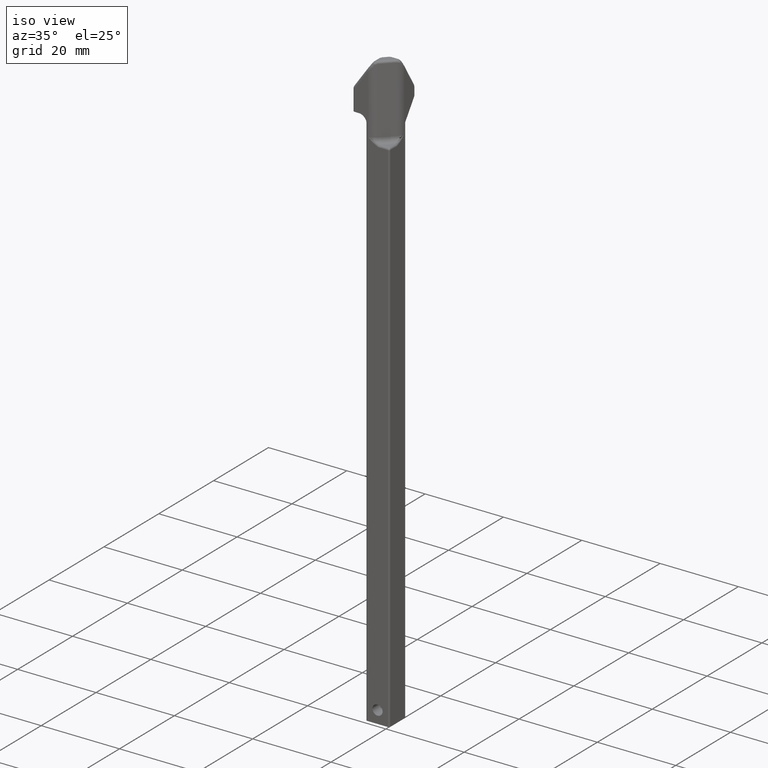
[diagram: clean part render]
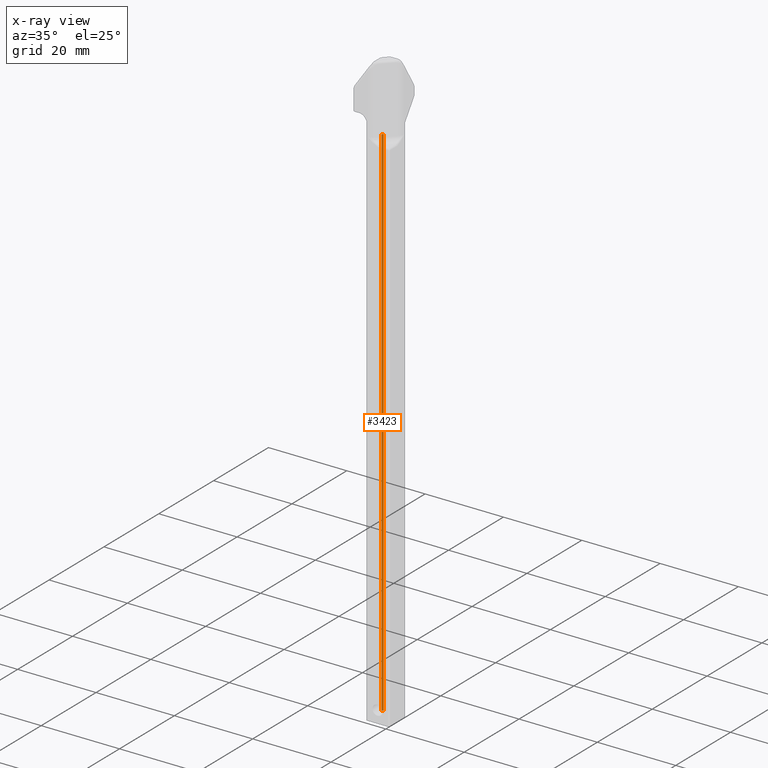
[diagram: x-ray — body ghosted, one internal face saturated and labeled with its STEP entity id]
A machine part, iso view, then the same camera in x-ray: the body is ghosted and one INTERNAL B-rep face — a face not visible from any outside direction — is saturated and labeled: STEP entity #3423.
In plain terms, the highlighted cylindrical surface (edge-blend (fillet) strip) has radius 0.381 mm, axis along (0, 0, -1).
Its self-contained STEP definition (entity closure, byte-faithful):
#11=CARTESIAN_POINT('',(-1.035E-1,1.035E-1,-3.76E0));
#12=DIRECTION('',(0.E0,0.E0,-1.E0));
#13=DIRECTION('',(-1.E0,0.E0,0.E0));
#14=AXIS2_PLACEMENT_3D('',#11,#12,#13);
#335=DIRECTION('',(6.906099706125E-10,2.092454778852E-10,-1.E0));
#336=VECTOR('',#335,5.239999823146E0);
#337=CARTESIAN_POINT('',(-1.035000036188E-1,1.184999989036E-1,
1.479999823146E0));
#338=LINE('',#337,#336);
#581=DIRECTION('',(-3.481773965488E-9,-1.061051774601E-8,-1.E0));
#582=VECTOR('',#581,5.239997477484E0);
#583=CARTESIAN_POINT('',(-1.184999817555E-1,1.035000555991E-1,
1.479997477484E0));
#584=LINE('',#583,#582);
#1133=CARTESIAN_POINT('',(-1.035000036188E-1,1.184999989036E-1,
1.479999823146E0));
#1134=CARTESIAN_POINT('',(-1.054634772141E-1,1.184999989886E-1,
1.479993033074E0));
#1135=CARTESIAN_POINT('',(-1.093895509959E-1,1.177189756983E-1,
1.480003463312E0));
#1136=CARTESIAN_POINT('',(-1.143827473030E-1,1.143827930876E-1,
1.479998294891E0));
#1137=CARTESIAN_POINT('',(-1.177189744594E-1,1.093895578974E-1,
1.480003333707E0));
#1138=CARTESIAN_POINT('',(-1.184999827570E-1,1.054635504423E-1,
1.479993357545E0));
#1139=CARTESIAN_POINT('',(-1.184999817555E-1,1.035000555991E-1,
1.479997477484E0));
#1145=CARTESIAN_POINT('',(-1.185E-1,1.035E-1,-3.76E0));
#1146=CARTESIAN_POINT('',(-1.035E-1,1.185E-1,-3.76E0));
#1147=VERTEX_POINT('',#1145);
#1148=VERTEX_POINT('',#1146);
#1180=CARTESIAN_POINT('',(-1.035000036188E-1,1.184999989036E-1,
1.479999823146E0));
#1182=VERTEX_POINT('',#1180);
#1194=CARTESIAN_POINT('',(-1.184999817555E-1,1.035000555991E-1,
1.479997477484E0));
#1196=VERTEX_POINT('',#1194);
#3412=CARTESIAN_POINT('',(-1.035E-1,1.035E-1,1.653900772386E0));
#3413=DIRECTION('',(0.E0,0.E0,-1.E0));
#3414=DIRECTION('',(-1.E0,0.E0,0.E0));
#3415=AXIS2_PLACEMENT_3D('',#3412,#3413,#3414);
#3416=CYLINDRICAL_SURFACE('',#3415,1.5E-2);
#3417=ORIENTED_EDGE('',*,*,#3405,.T.);
#3418=ORIENTED_EDGE('',*,*,#2183,.T.);
#3419=ORIENTED_EDGE('',*,*,#1353,.T.);
#3420=ORIENTED_EDGE('',*,*,#1884,.F.);
#3421=EDGE_LOOP('',(#3417,#3418,#3419,#3420));
#3422=FACE_OUTER_BOUND('',#3421,.F.);
#3423=ADVANCED_FACE('',(#3422),#3416,.T.);
#15=CIRCLE('',#14,1.5E-2);
#1140=B_SPLINE_CURVE_WITH_KNOTS('',3,(#1133,#1134,#1135,#1136,#1137,#1138,
#1139),.UNSPECIFIED.,.F.,.F.,(4,1,1,1,4),(0.E0,2.5E-1,5.E-1,7.5E-1,1.E0),
.UNSPECIFIED.);
#1353=EDGE_CURVE('',#1147,#1148,#15,.T.);
#1884=EDGE_CURVE('',#1182,#1148,#338,.T.);
#2183=EDGE_CURVE('',#1196,#1147,#584,.T.);
#3405=EDGE_CURVE('',#1182,#1196,#1140,.T.);